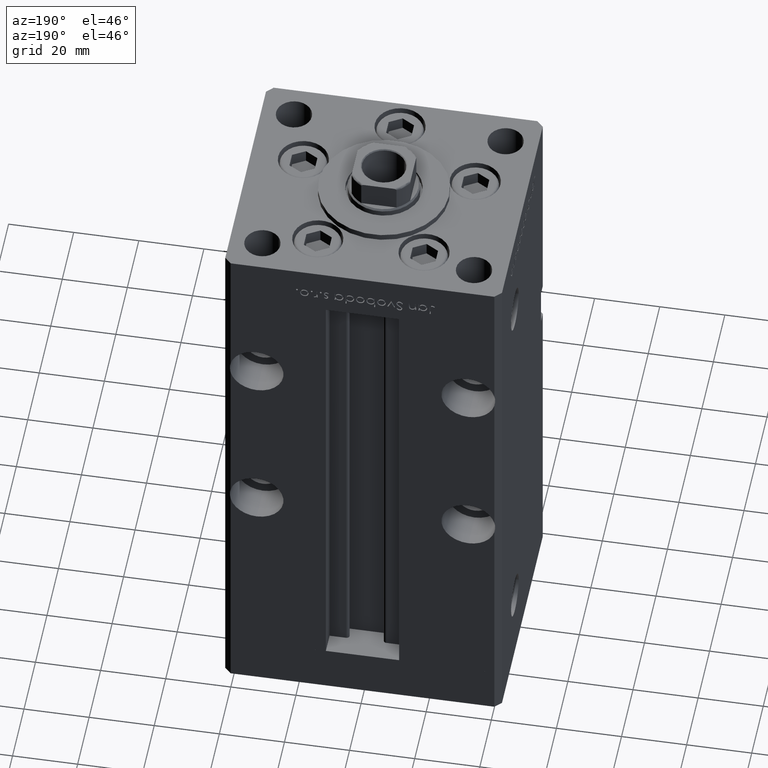
[diagram: clean part render]
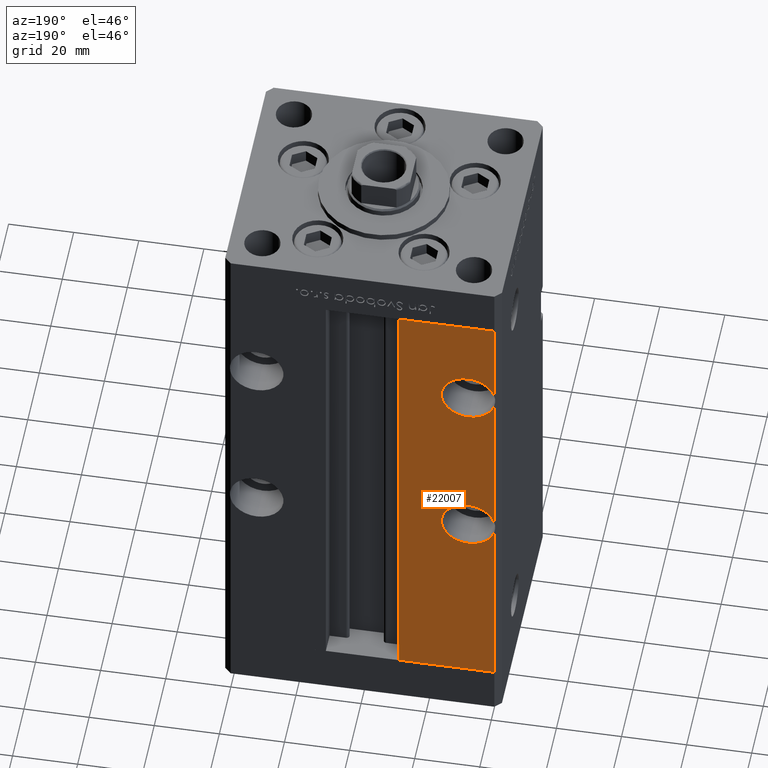
[diagram: same view with one face highlighted and labeled with its STEP entity id]
A machine part, auxiliary view. The second image highlights one B-rep face of the part: STEP entity #22007.
In plain terms, the highlighted planar face has unit normal (0, -1, 0).
Its self-contained STEP definition (entity closure, byte-faithful):
#50 = ORIENTED_EDGE ( 'NONE', *, *, #32366, .F. ) ;
#824 = DIRECTION ( 'NONE',  ( 0.000000000000000000, 0.000000000000000000, -1.000000000000000000 ) ) ;
#1618 = CARTESIAN_POINT ( 'NONE',  ( -32.50000000000000000, 37.50000000000000000, 118.0000000000000000 ) ) ;
#3226 = CIRCLE ( 'NONE', #24679, 8.250000000000007105 ) ;
#3252 = CARTESIAN_POINT ( 'NONE',  ( -32.50000000000000000, 37.50000000000000000, 109.7499999999999858 ) ) ;
#3708 = VERTEX_POINT ( 'NONE', #5401 ) ;
#4110 = VECTOR ( 'NONE', #27609, 1000.000000000000000 ) ;
#4429 = CARTESIAN_POINT ( 'NONE',  ( -32.50000000000000000, 37.50000000000000000, 126.2500000000000000 ) ) ;
#4757 = CARTESIAN_POINT ( 'NONE',  ( -40.50000000000000711, 37.50000000000000000, 148.5000000000000000 ) ) ;
#5401 = CARTESIAN_POINT ( 'NONE',  ( -40.50000000000000711, 37.50000000000000000, 65.01556443707461597 ) ) ;
#5668 = VERTEX_POINT ( 'NONE', #26180 ) ;
#6480 = ORIENTED_EDGE ( 'NONE', *, *, #17932, .T. ) ;
#6773 = CARTESIAN_POINT ( 'NONE',  ( -32.50000000000000000, 37.50000000000000000, 54.75000000000000000 ) ) ;
#7020 = ORIENTED_EDGE ( 'NONE', *, *, #16109, .F. ) ;
#8897 = DIRECTION ( 'NONE',  ( 0.000000000000000000, 1.000000000000000000, -0.000000000000000000 ) ) ;
#10033 = EDGE_CURVE ( 'NONE', #11677, #20452, #31388, .T. ) ;
#10302 = DIRECTION ( 'NONE',  ( 0.000000000000000000, 0.000000000000000000, 1.000000000000000000 ) ) ;
#10532 = CARTESIAN_POINT ( 'NONE',  ( -32.50000000000000000, 37.50000000000000000, 118.0000000000000000 ) ) ;
#11333 = DIRECTION ( 'NONE',  ( 0.000000000000000000, 1.000000000000000000, 0.000000000000000000 ) ) ;
#11677 = VERTEX_POINT ( 'NONE', #6773 ) ;
#12036 = CIRCLE ( 'NONE', #31762, 8.250000000000007105 ) ;
#12569 = DIRECTION ( 'NONE',  ( -0.000000000000000000, -0.000000000000000000, 1.000000000000000000 ) ) ;
#12774 = VECTOR ( 'NONE', #44365, 1000.000000000000000 ) ;
#14014 = ORIENTED_EDGE ( 'NONE', *, *, #21837, .F. ) ;
#14330 = EDGE_CURVE ( 'NONE', #51802, #44887, #3226, .T. ) ;
#14340 = CARTESIAN_POINT ( 'NONE',  ( -32.50000000000000000, 37.50000000000000000, 63.00000000000000000 ) ) ;
#14433 = AXIS2_PLACEMENT_3D ( 'NONE', #1618, #8897, #824 ) ;
#15676 = ORIENTED_EDGE ( 'NONE', *, *, #18959, .T. ) ;
#16109 = EDGE_CURVE ( 'NONE', #44887, #3708, #46942, .T. ) ;
#16345 = VERTEX_POINT ( 'NONE', #20861 ) ;
#17476 = EDGE_CURVE ( 'NONE', #20452, #37253, #34749, .T. ) ;
#17932 = EDGE_CURVE ( 'NONE', #16345, #45266, #23331, .T. ) ;
#18593 = DIRECTION ( 'NONE',  ( 0.000000000000000000, 1.000000000000000000, -0.000000000000000000 ) ) ;
#18684 = CARTESIAN_POINT ( 'NONE',  ( -40.50000000000000711, 37.50000000000000000, 0.000000000000000000 ) ) ;
#18959 = EDGE_CURVE ( 'NONE', #24733, #37253, #43561, .T. ) ;
#20322 = VECTOR ( 'NONE', #12569, 1000.000000000000000 ) ;
#20452 = VERTEX_POINT ( 'NONE', #45289 ) ;
#20507 = ORIENTED_EDGE ( 'NONE', *, *, #40102, .F. ) ;
#20861 = CARTESIAN_POINT ( 'NONE',  ( -40.50000000000000711, 37.50000000000000000, 148.5000000000000000 ) ) ;
#21156 = DIRECTION ( 'NONE',  ( -0.000000000000000000, -0.000000000000000000, -1.000000000000000000 ) ) ;
#21316 = AXIS2_PLACEMENT_3D ( 'NONE', #28627, #36697, #45016 ) ;
#21837 = EDGE_CURVE ( 'NONE', #16345, #5668, #29469, .T. ) ;
#21896 = CARTESIAN_POINT ( 'NONE',  ( -32.50000000000000000, 37.50000000000000000, 118.0000000000000000 ) ) ;
#22007 = ADVANCED_FACE ( 'NONE', ( #23543 ), #28101, .F. ) ;
#22515 = CARTESIAN_POINT ( 'NONE',  ( -32.50000000000000000, 37.50000000000000000, 71.25000000000001421 ) ) ;
#22842 = CIRCLE ( 'NONE', #28824, 8.250000000000007105 ) ;
#23012 = VECTOR ( 'NONE', #38766, 1000.000000000000000 ) ;
#23331 = LINE ( 'NONE', #39172, #30713 ) ;
#23543 = FACE_OUTER_BOUND ( 'NONE', #27445, .T. ) ;
#23688 = CARTESIAN_POINT ( 'NONE',  ( -11.24999999999999822, 37.50000000000000000, 0.000000000000000000 ) ) ;
#24679 = AXIS2_PLACEMENT_3D ( 'NONE', #10532, #18593, #30683 ) ;
#24733 = VERTEX_POINT ( 'NONE', #32364 ) ;
#25008 = ORIENTED_EDGE ( 'NONE', *, *, #44915, .F. ) ;
#25591 = DIRECTION ( 'NONE',  ( 0.000000000000000000, 0.000000000000000000, 1.000000000000000000 ) ) ;
#26180 = CARTESIAN_POINT ( 'NONE',  ( -40.50000000000000711, 37.50000000000000000, 120.0155644370746018 ) ) ;
#27273 = ORIENTED_EDGE ( 'NONE', *, *, #10033, .F. ) ;
#27445 = EDGE_LOOP ( 'NONE', ( #7020, #51624, #39675, #20507, #14014, #6480, #50, #15676, #35700, #27273, #25008, #46434 ) ) ;
#27609 = DIRECTION ( 'NONE',  ( -0.000000000000000000, -0.000000000000000000, -1.000000000000000000 ) ) ;
#27720 = DIRECTION ( 'NONE',  ( 0.000000000000000000, 0.000000000000000000, 1.000000000000000000 ) ) ;
#28101 = PLANE ( 'NONE',  #21316 ) ;
#28274 = VECTOR ( 'NONE', #21156, 1000.000000000000000 ) ;
#28627 = CARTESIAN_POINT ( 'NONE',  ( -11.24999999999999822, 37.50000000000000000, 148.5000000000000000 ) ) ;
#28824 = AXIS2_PLACEMENT_3D ( 'NONE', #50295, #46005, #25591 ) ;
#28966 = EDGE_CURVE ( 'NONE', #3708, #49243, #22842, .T. ) ;
#29469 = LINE ( 'NONE', #4757, #28274 ) ;
#30556 = CARTESIAN_POINT ( 'NONE',  ( -40.50000000000000711, 37.50000000000000000, 148.5000000000000000 ) ) ;
#30683 = DIRECTION ( 'NONE',  ( 0.000000000000000000, 0.000000000000000000, -1.000000000000000000 ) ) ;
#30713 = VECTOR ( 'NONE', #39718, 1000.000000000000000 ) ;
#30720 = DIRECTION ( 'NONE',  ( 0.000000000000000000, 1.000000000000000000, 0.000000000000000000 ) ) ;
#31388 = CIRCLE ( 'NONE', #38220, 8.250000000000007105 ) ;
#31762 = AXIS2_PLACEMENT_3D ( 'NONE', #14340, #30720, #10302 ) ;
#32364 = CARTESIAN_POINT ( 'NONE',  ( -11.24999999999999822, 37.50000000000000000, 0.000000000000000000 ) ) ;
#32366 = EDGE_CURVE ( 'NONE', #24733, #45266, #32469, .T. ) ;
#32469 = LINE ( 'NONE', #45840, #20322 ) ;
#33222 = DIRECTION ( 'NONE',  ( 0.000000000000000000, 0.000000000000000000, -1.000000000000000000 ) ) ;
#34749 = LINE ( 'NONE', #47094, #23012 ) ;
#35700 = ORIENTED_EDGE ( 'NONE', *, *, #17476, .F. ) ;
#36697 = DIRECTION ( 'NONE',  ( 0.000000000000000000, -1.000000000000000000, 0.000000000000000000 ) ) ;
#37236 = DIRECTION ( 'NONE',  ( 0.000000000000000000, 1.000000000000000000, -0.000000000000000000 ) ) ;
#37253 = VERTEX_POINT ( 'NONE', #18684 ) ;
#38220 = AXIS2_PLACEMENT_3D ( 'NONE', #52435, #11333, #27720 ) ;
#38766 = DIRECTION ( 'NONE',  ( -0.000000000000000000, -0.000000000000000000, -1.000000000000000000 ) ) ;
#39172 = CARTESIAN_POINT ( 'NONE',  ( -11.24999999999999822, 37.50000000000000000, 148.5000000000000000 ) ) ;
#39323 = CARTESIAN_POINT ( 'NONE',  ( -40.50000000000000711, 37.50000000000000000, 115.9844355629253840 ) ) ;
#39675 = ORIENTED_EDGE ( 'NONE', *, *, #41061, .F. ) ;
#39718 = DIRECTION ( 'NONE',  ( 1.000000000000000000, 0.000000000000000000, 0.000000000000000000 ) ) ;
#40102 = EDGE_CURVE ( 'NONE', #5668, #50524, #48768, .T. ) ;
#41061 = EDGE_CURVE ( 'NONE', #50524, #51802, #52220, .T. ) ;
#43561 = LINE ( 'NONE', #23688, #12774 ) ;
#43751 = CARTESIAN_POINT ( 'NONE',  ( -11.24999999999999822, 37.50000000000000000, 148.5000000000000000 ) ) ;
#44365 = DIRECTION ( 'NONE',  ( -1.000000000000000000, 0.000000000000000000, 0.000000000000000000 ) ) ;
#44887 = VERTEX_POINT ( 'NONE', #39323 ) ;
#44915 = EDGE_CURVE ( 'NONE', #49243, #11677, #12036, .T. ) ;
#45016 = DIRECTION ( 'NONE',  ( 0.000000000000000000, -0.000000000000000000, -1.000000000000000000 ) ) ;
#45266 = VERTEX_POINT ( 'NONE', #43751 ) ;
#45289 = CARTESIAN_POINT ( 'NONE',  ( -40.50000000000000711, 37.50000000000000000, 60.98443556292539114 ) ) ;
#45840 = CARTESIAN_POINT ( 'NONE',  ( -11.24999999999999822, 37.50000000000000000, 0.000000000000000000 ) ) ;
#46005 = DIRECTION ( 'NONE',  ( 0.000000000000000000, 1.000000000000000000, 0.000000000000000000 ) ) ;
#46434 = ORIENTED_EDGE ( 'NONE', *, *, #28966, .F. ) ;
#46942 = LINE ( 'NONE', #30556, #4110 ) ;
#47094 = CARTESIAN_POINT ( 'NONE',  ( -40.50000000000000711, 37.50000000000000000, 148.5000000000000000 ) ) ;
#48768 = CIRCLE ( 'NONE', #14433, 8.250000000000007105 ) ;
#49243 = VERTEX_POINT ( 'NONE', #22515 ) ;
#50295 = CARTESIAN_POINT ( 'NONE',  ( -32.50000000000000000, 37.50000000000000000, 63.00000000000000000 ) ) ;
#50524 = VERTEX_POINT ( 'NONE', #4429 ) ;
#51624 = ORIENTED_EDGE ( 'NONE', *, *, #14330, .F. ) ;
#51802 = VERTEX_POINT ( 'NONE', #3252 ) ;
#52220 = CIRCLE ( 'NONE', #53066, 8.250000000000007105 ) ;
#52435 = CARTESIAN_POINT ( 'NONE',  ( -32.50000000000000000, 37.50000000000000000, 63.00000000000000000 ) ) ;
#53066 = AXIS2_PLACEMENT_3D ( 'NONE', #21896, #37236, #33222 ) ;